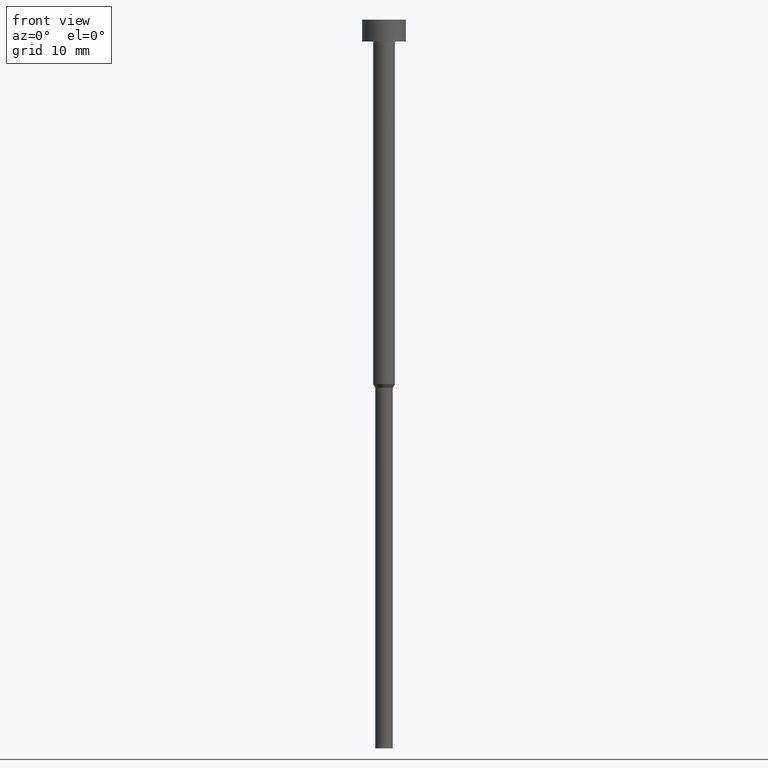
[diagram: clean part render]
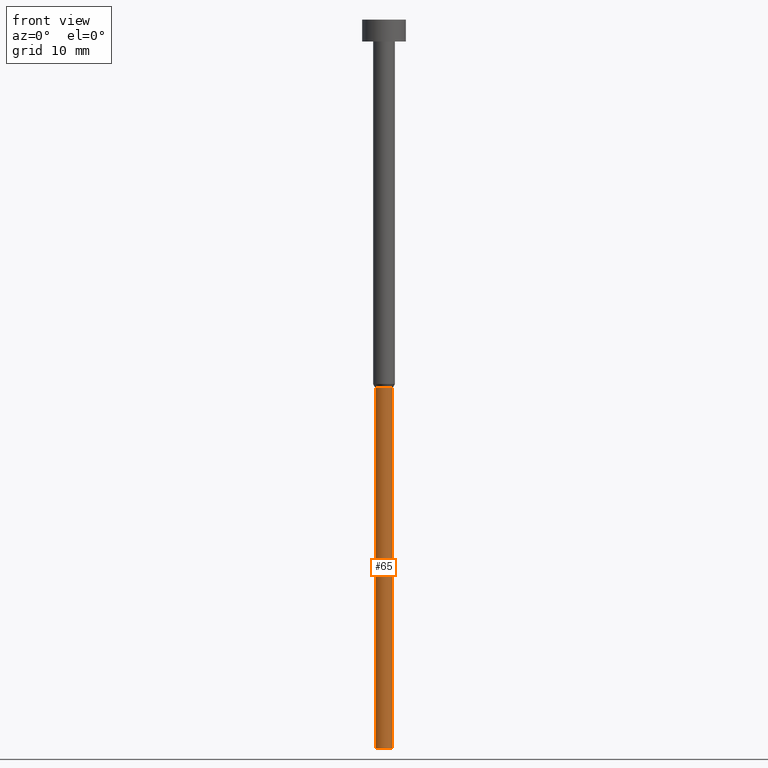
[diagram: same view with one face highlighted and labeled with its STEP entity id]
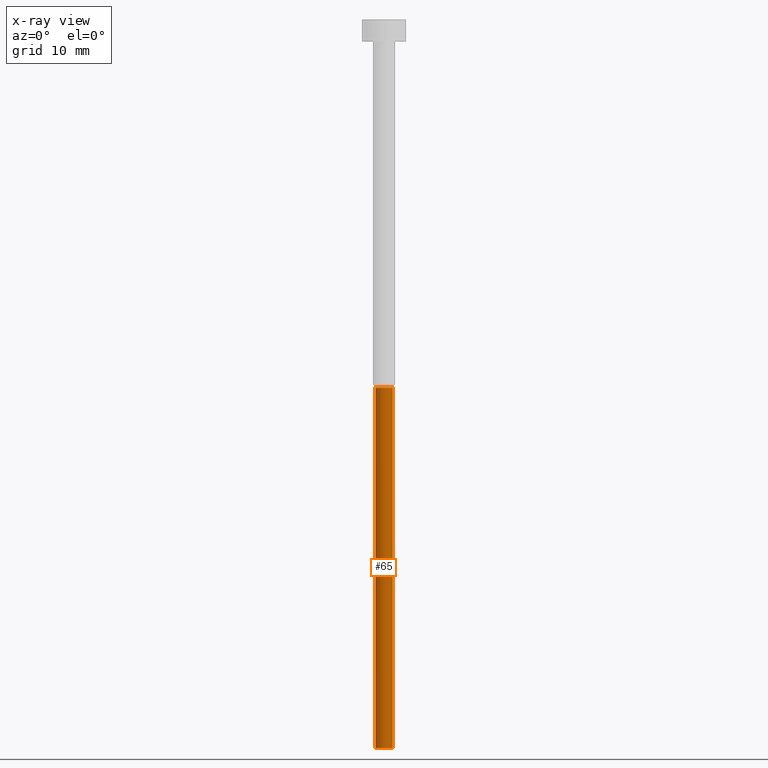
[diagram: x-ray of the same camera — body ghosted, the highlighted face saturated]
A machine part, front view. The second image highlights one B-rep face of the part: STEP entity #65.
The next image is the same camera in x-ray: the body ghosted, the highlighted face saturated — about 0% of this face is hidden behind the body in this view.
In plain terms, the highlighted cylindrical surface (edge-blend (fillet) strip) has radius 1.2 mm, axis along (-0, -0, 1).
Its self-contained STEP definition (entity closure, byte-faithful):
#6 = DIRECTION ( 'NONE',  ( -0.000000000000000000, -0.000000000000000000, 1.000000000000000000 ) ) ;
#14 = VERTEX_POINT ( 'NONE', #315 ) ;
#21 = EDGE_CURVE ( 'NONE', #132, #14, #201, .T. ) ;
#23 = CARTESIAN_POINT ( 'NONE',  ( 0.000000000000000000, 0.000000000000000000, 0.000000000000000000 ) ) ;
#41 = DIRECTION ( 'NONE',  ( -0.000000000000000000, -0.000000000000000000, 1.000000000000000000 ) ) ;
#58 = DIRECTION ( 'NONE',  ( -0.000000000000000000, -0.000000000000000000, 1.000000000000000000 ) ) ;
#61 = CARTESIAN_POINT ( 'NONE',  ( -1.199999999999999956, 1.469576158976823553E-16, -50.51961524227066747 ) ) ;
#65 = ADVANCED_FACE ( 'NONE', ( #76 ), #159, .T. ) ;
#74 = EDGE_CURVE ( 'NONE', #164, #132, #189, .T. ) ;
#76 = FACE_OUTER_BOUND ( 'NONE', #262, .T. ) ;
#101 = ORIENTED_EDGE ( 'NONE', *, *, #135, .F. ) ;
#115 = DIRECTION ( 'NONE',  ( -0.000000000000000000, -0.000000000000000000, 1.000000000000000000 ) ) ;
#118 = CIRCLE ( 'NONE', #197, 1.199999999999999956 ) ;
#131 = CARTESIAN_POINT ( 'NONE',  ( 1.199999999999999956, 0.000000000000000000, -100.0000000000000000 ) ) ;
#132 = VERTEX_POINT ( 'NONE', #131 ) ;
#135 = EDGE_CURVE ( 'NONE', #207, #14, #118, .T. ) ;
#138 = LINE ( 'NONE', #259, #261 ) ;
#144 = DIRECTION ( 'NONE',  ( 1.000000000000000000, 0.000000000000000000, 0.000000000000000000 ) ) ;
#156 = DIRECTION ( 'NONE',  ( 1.000000000000000000, 0.000000000000000000, 0.000000000000000000 ) ) ;
#159 = CYLINDRICAL_SURFACE ( 'NONE', #166, 1.199999999999999956 ) ;
#164 = VERTEX_POINT ( 'NONE', #174 ) ;
#166 = AXIS2_PLACEMENT_3D ( 'NONE', #23, #115, #230 ) ;
#174 = CARTESIAN_POINT ( 'NONE',  ( -1.199999999999999956, 1.469576158976823553E-16, -100.0000000000000000 ) ) ;
#188 = CARTESIAN_POINT ( 'NONE',  ( 0.000000000000000000, 0.000000000000000000, -50.51961524227066747 ) ) ;
#189 = CIRCLE ( 'NONE', #271, 1.199999999999999956 ) ;
#190 = CARTESIAN_POINT ( 'NONE',  ( 1.199999999999999956, 0.000000000000000000, 0.000000000000000000 ) ) ;
#197 = AXIS2_PLACEMENT_3D ( 'NONE', #188, #275, #156 ) ;
#201 = LINE ( 'NONE', #190, #218 ) ;
#207 = VERTEX_POINT ( 'NONE', #61 ) ;
#218 = VECTOR ( 'NONE', #58, 1000.000000000000000 ) ;
#230 = DIRECTION ( 'NONE',  ( 1.000000000000000000, 0.000000000000000000, 0.000000000000000000 ) ) ;
#259 = CARTESIAN_POINT ( 'NONE',  ( -1.199999999999999956, 1.469576158976823553E-16, 0.000000000000000000 ) ) ;
#261 = VECTOR ( 'NONE', #6, 1000.000000000000000 ) ;
#262 = EDGE_LOOP ( 'NONE', ( #293, #325, #268, #101 ) ) ;
#268 = ORIENTED_EDGE ( 'NONE', *, *, #21, .T. ) ;
#271 = AXIS2_PLACEMENT_3D ( 'NONE', #285, #41, #144 ) ;
#275 = DIRECTION ( 'NONE',  ( -0.000000000000000000, -0.000000000000000000, 1.000000000000000000 ) ) ;
#285 = CARTESIAN_POINT ( 'NONE',  ( 0.000000000000000000, 0.000000000000000000, -100.0000000000000000 ) ) ;
#293 = ORIENTED_EDGE ( 'NONE', *, *, #299, .F. ) ;
#299 = EDGE_CURVE ( 'NONE', #164, #207, #138, .T. ) ;
#315 = CARTESIAN_POINT ( 'NONE',  ( 1.199999999999999956, 0.000000000000000000, -50.51961524227066747 ) ) ;
#325 = ORIENTED_EDGE ( 'NONE', *, *, #74, .T. ) ;